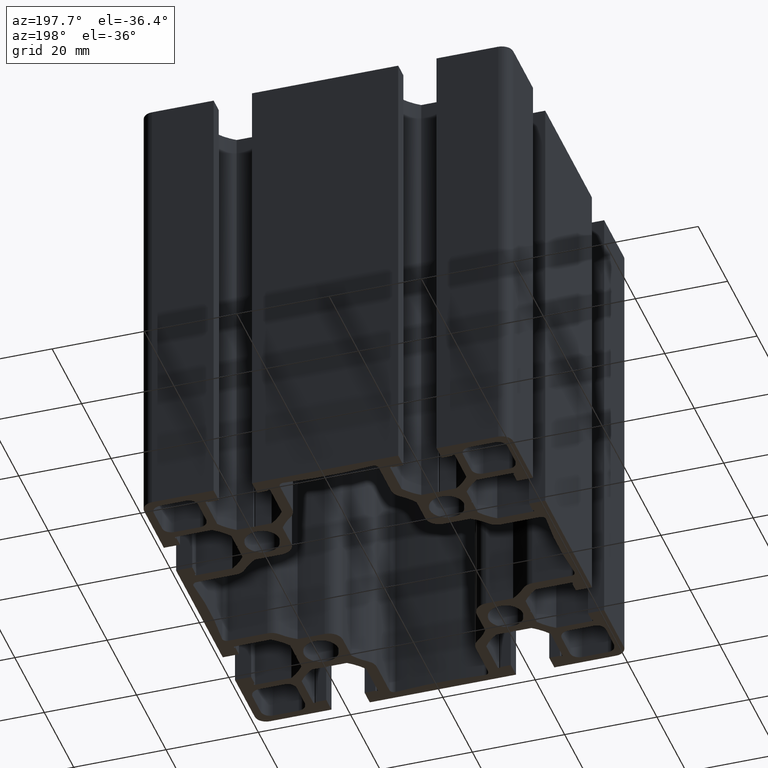
[diagram: clean part render]
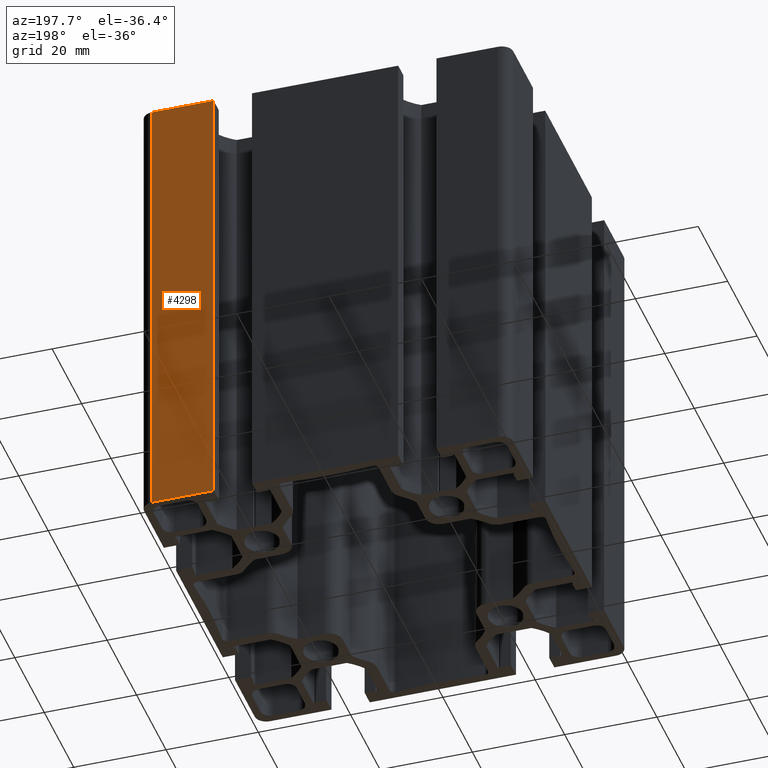
[diagram: same view with one face highlighted and labeled with its STEP entity id]
A machine part, auxiliary view. The second image highlights one B-rep face of the part: STEP entity #4298.
In plain terms, the highlighted planar face has unit normal (-0, 1, 0).
Its self-contained STEP definition (entity closure, byte-faithful):
#145=PLANE('',#4676);
#352=FACE_OUTER_BOUND('',#570,.T.);
#570=EDGE_LOOP('',(#3505,#3506,#3507,#3508));
#1014=LINE('',#7086,#1470);
#1015=LINE('',#7089,#1471);
#1016=LINE('',#7091,#1472);
#1017=LINE('',#7092,#1473);
#1470=VECTOR('',#5820,100.);
#1471=VECTOR('',#5823,13.3500000000001);
#1472=VECTOR('',#5824,13.3500000000001);
#1473=VECTOR('',#5825,100.);
#2079=VERTEX_POINT('',#7082);
#2080=VERTEX_POINT('',#7084);
#2081=VERTEX_POINT('',#7088);
#2082=VERTEX_POINT('',#7090);
#2688=EDGE_CURVE('',#2079,#2080,#1014,.T.);
#2689=EDGE_CURVE('',#2081,#2079,#1015,.T.);
#2690=EDGE_CURVE('',#2082,#2080,#1016,.T.);
#2691=EDGE_CURVE('',#2081,#2082,#1017,.T.);
#3505=ORIENTED_EDGE('',*,*,#2689,.T.);
#3506=ORIENTED_EDGE('',*,*,#2688,.T.);
#3507=ORIENTED_EDGE('',*,*,#2690,.F.);
#3508=ORIENTED_EDGE('',*,*,#2691,.F.);
#4298=ADVANCED_FACE('',(#352),#145,.T.);
#4676=AXIS2_PLACEMENT_3D('',#7087,#5821,#5822);
#5820=DIRECTION('',(0.,0.,1.));
#5821=DIRECTION('center_axis',(-1.33060437408257E-15,1.,0.));
#5822=DIRECTION('ref_axis',(-1.,-1.4210854715202E-15,0.));
#5823=DIRECTION('',(-1.,-1.33060437408257E-15,0.));
#5824=DIRECTION('',(-1.,-1.33060437408257E-15,0.));
#5825=DIRECTION('',(0.,0.,1.));
#7082=CARTESIAN_POINT('',(24.15,40.,0.));
#7084=CARTESIAN_POINT('',(24.15,40.,100.));
#7086=CARTESIAN_POINT('',(24.15,40.,0.));
#7087=CARTESIAN_POINT('Origin',(37.5000000000001,40.,0.));
#7088=CARTESIAN_POINT('',(37.5000000000001,40.,0.));
#7089=CARTESIAN_POINT('',(37.5000000000001,40.,0.));
#7090=CARTESIAN_POINT('',(37.5000000000001,40.,100.));
#7091=CARTESIAN_POINT('',(37.5000000000001,40.,100.));
#7092=CARTESIAN_POINT('',(37.5000000000001,40.,0.));